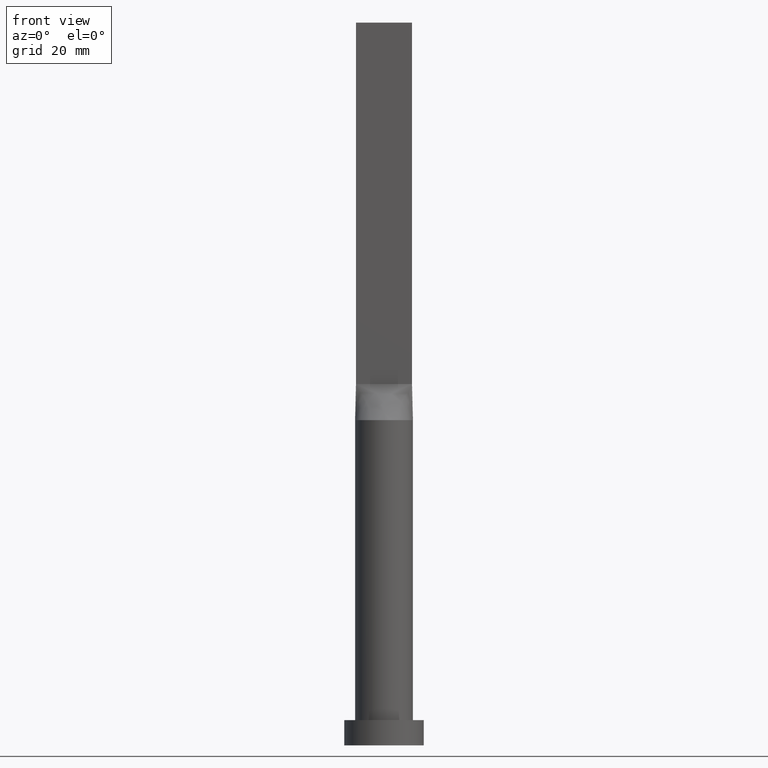
[diagram: clean part render]
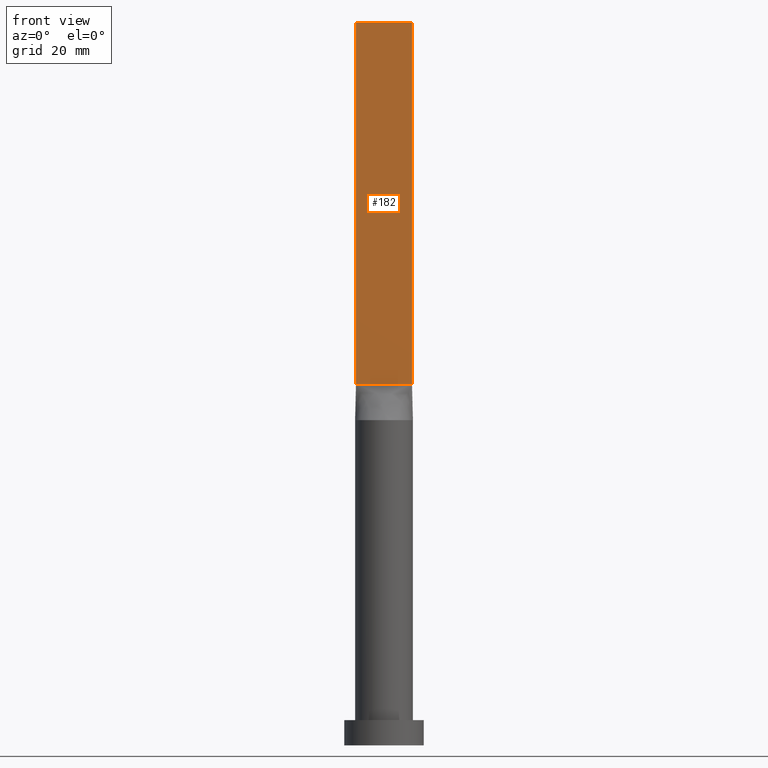
[diagram: same view with one face highlighted and labeled with its STEP entity id]
A machine part, front view. The second image highlights one B-rep face of the part: STEP entity #182.
In plain terms, the highlighted planar face has unit normal (0, 1, -0).
Its self-contained STEP definition (entity closure, byte-faithful):
#3 = PLANE ( 'NONE',  #427 ) ;
#51 = DIRECTION ( 'NONE',  ( 1.000000000000000000, -5.595882180570345426E-17, 0.000000000000000000 ) ) ;
#63 = VERTEX_POINT ( 'NONE', #105 ) ;
#100 = VECTOR ( 'NONE', #51, 1000.000000000000000 ) ;
#105 = CARTESIAN_POINT ( 'NONE',  ( 7.750000000000000000, -1.249999999999999778, 100.0000000000000000 ) ) ;
#115 = VECTOR ( 'NONE', #457, 1000.000000000000000 ) ;
#128 = VECTOR ( 'NONE', #488, 1000.000000000000000 ) ;
#176 = CARTESIAN_POINT ( 'NONE',  ( -7.750000000000000000, -1.249999999999998890, 200.0000000000000000 ) ) ;
#177 = VERTEX_POINT ( 'NONE', #217 ) ;
#179 = ORIENTED_EDGE ( 'NONE', *, *, #589, .T. ) ;
#182 = ADVANCED_FACE ( 'NONE', ( #209 ), #3, .F. ) ;
#209 = FACE_OUTER_BOUND ( 'NONE', #398, .T. ) ;
#217 = CARTESIAN_POINT ( 'NONE',  ( -7.750000000000000000, -1.249999999999998890, 200.0000000000000000 ) ) ;
#224 = LINE ( 'NONE', #176, #621 ) ;
#242 = LINE ( 'NONE', #574, #128 ) ;
#257 = CARTESIAN_POINT ( 'NONE',  ( -7.750000000000000000, -1.249999999999998890, 200.0000000000000000 ) ) ;
#262 = EDGE_CURVE ( 'NONE', #177, #409, #224, .T. ) ;
#303 = DIRECTION ( 'NONE',  ( -1.000000000000000000, 5.595882180570345426E-17, 0.000000000000000000 ) ) ;
#311 = LINE ( 'NONE', #586, #100 ) ;
#353 = LINE ( 'NONE', #545, #115 ) ;
#368 = DIRECTION ( 'NONE',  ( 1.000000000000000000, -5.595882180570345426E-17, 0.000000000000000000 ) ) ;
#385 = CARTESIAN_POINT ( 'NONE',  ( 7.750000000000000000, -1.249999999999999778, 200.0000000000000000 ) ) ;
#398 = EDGE_LOOP ( 'NONE', ( #179, #634, #597, #550 ) ) ;
#403 = DIRECTION ( 'NONE',  ( 5.595882180570345426E-17, 1.000000000000000000, -0.000000000000000000 ) ) ;
#409 = VERTEX_POINT ( 'NONE', #385 ) ;
#427 = AXIS2_PLACEMENT_3D ( 'NONE', #257, #403, #303 ) ;
#436 = EDGE_CURVE ( 'NONE', #177, #508, #242, .T. ) ;
#457 = DIRECTION ( 'NONE',  ( -0.000000000000000000, -0.000000000000000000, -1.000000000000000000 ) ) ;
#488 = DIRECTION ( 'NONE',  ( -0.000000000000000000, -0.000000000000000000, -1.000000000000000000 ) ) ;
#508 = VERTEX_POINT ( 'NONE', #584 ) ;
#528 = EDGE_CURVE ( 'NONE', #409, #63, #353, .T. ) ;
#545 = CARTESIAN_POINT ( 'NONE',  ( 7.750000000000000000, -1.249999999999999778, 200.0000000000000000 ) ) ;
#550 = ORIENTED_EDGE ( 'NONE', *, *, #436, .T. ) ;
#574 = CARTESIAN_POINT ( 'NONE',  ( -7.750000000000000000, -1.249999999999998890, 200.0000000000000000 ) ) ;
#584 = CARTESIAN_POINT ( 'NONE',  ( -7.750000000000000000, -1.249999999999998890, 100.0000000000000000 ) ) ;
#586 = CARTESIAN_POINT ( 'NONE',  ( -7.750000000000000000, -1.249999999999998890, 100.0000000000000000 ) ) ;
#589 = EDGE_CURVE ( 'NONE', #508, #63, #311, .T. ) ;
#597 = ORIENTED_EDGE ( 'NONE', *, *, #262, .F. ) ;
#621 = VECTOR ( 'NONE', #368, 1000.000000000000000 ) ;
#634 = ORIENTED_EDGE ( 'NONE', *, *, #528, .F. ) ;